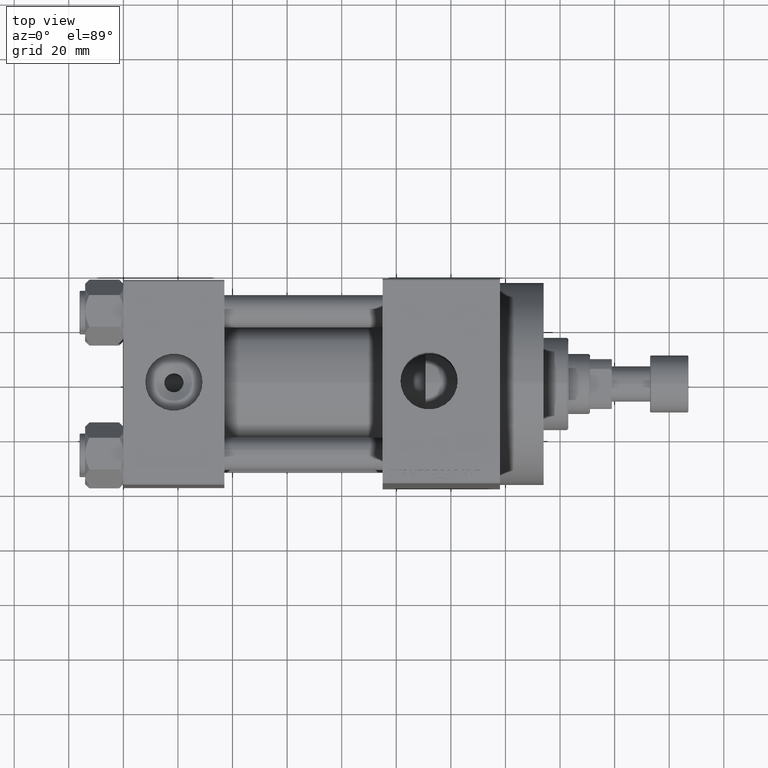
[diagram: clean part render]
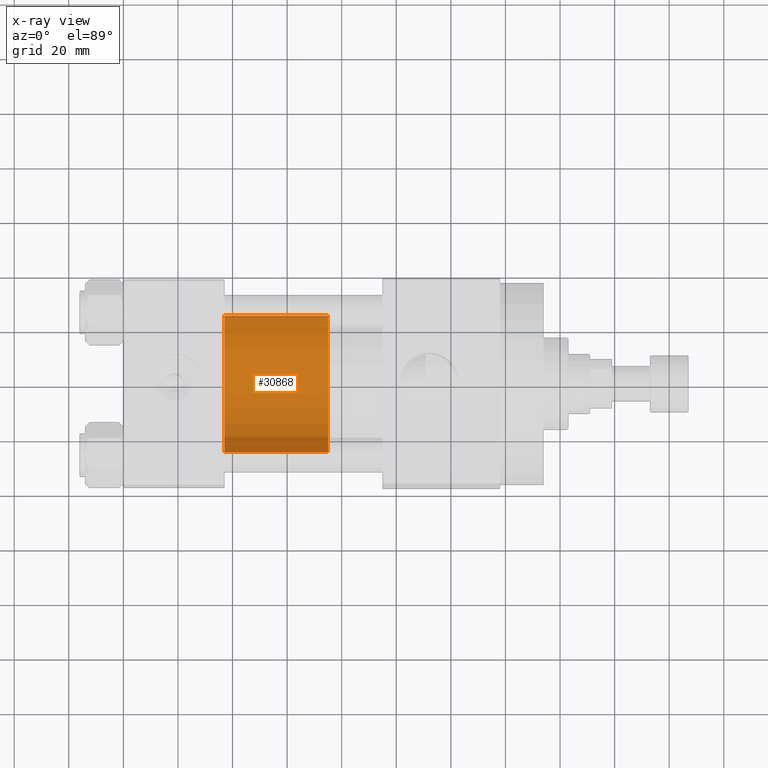
[diagram: x-ray — body ghosted, one internal face saturated and labeled with its STEP entity id]
A machine part, top view, then the same camera in x-ray: the body is ghosted and one INTERNAL B-rep face — a face not visible from any outside direction — is saturated and labeled: STEP entity #30868.
In plain terms, the highlighted cylindrical surface (partial cylindrical patch) has radius 25 mm, axis along (-1, 0, 0).
Its self-contained STEP definition (entity closure, byte-faithful):
#1606 = ORIENTED_EDGE ( 'NONE', *, *, #31120, .F. ) ;
#2234 = AXIS2_PLACEMENT_3D ( 'NONE', #32948, #11435, #18204 ) ;
#3378 = EDGE_CURVE ( 'NONE', #40544, #25558, #19190, .T. ) ;
#4782 = EDGE_LOOP ( 'NONE', ( #1606, #30766, #30052, #21010 ) ) ;
#6311 = CARTESIAN_POINT ( 'NONE',  ( -25.00000000000000000, 0.000000000000000000, 0.000000000000000000 ) ) ;
#8476 = DIRECTION ( 'NONE',  ( -0.000000000000000000, -0.000000000000000000, -1.000000000000000000 ) ) ;
#11435 = DIRECTION ( 'NONE',  ( 0.000000000000000000, 0.000000000000000000, 1.000000000000000000 ) ) ;
#11907 = VECTOR ( 'NONE', #42713, 1000.000000000000000 ) ;
#12106 = FACE_OUTER_BOUND ( 'NONE', #4782, .T. ) ;
#12366 = CARTESIAN_POINT ( 'NONE',  ( 25.00000000000000000, 3.061616997868383043E-15, 38.00000000000000000 ) ) ;
#12808 = VERTEX_POINT ( 'NONE', #37673 ) ;
#15056 = DIRECTION ( 'NONE',  ( -0.000000000000000000, -0.000000000000000000, -1.000000000000000000 ) ) ;
#16133 = CARTESIAN_POINT ( 'NONE',  ( -25.00000000000000000, 0.000000000000000000, 38.00000000000000000 ) ) ;
#17035 = AXIS2_PLACEMENT_3D ( 'NONE', #23209, #8476, #37960 ) ;
#18204 = DIRECTION ( 'NONE',  ( 1.000000000000000000, 0.000000000000000000, 0.000000000000000000 ) ) ;
#19147 = LINE ( 'NONE', #12366, #28138 ) ;
#19190 = CIRCLE ( 'NONE', #2234, 25.00000000000000000 ) ;
#20086 = AXIS2_PLACEMENT_3D ( 'NONE', #21731, #33095, #36245 ) ;
#21010 = ORIENTED_EDGE ( 'NONE', *, *, #44539, .F. ) ;
#21731 = CARTESIAN_POINT ( 'NONE',  ( 0.000000000000000000, 0.000000000000000000, 38.00000000000000000 ) ) ;
#23209 = CARTESIAN_POINT ( 'NONE',  ( 0.000000000000000000, 0.000000000000000000, 38.00000000000000000 ) ) ;
#24091 = LINE ( 'NONE', #16133, #11907 ) ;
#24179 = CARTESIAN_POINT ( 'NONE',  ( 25.00000000000000000, 3.061616997868383043E-15, 0.000000000000000000 ) ) ;
#25558 = VERTEX_POINT ( 'NONE', #6311 ) ;
#26851 = CYLINDRICAL_SURFACE ( 'NONE', #17035, 25.00000000000000000 ) ;
#28138 = VECTOR ( 'NONE', #15056, 1000.000000000000000 ) ;
#30052 = ORIENTED_EDGE ( 'NONE', *, *, #3378, .T. ) ;
#30766 = ORIENTED_EDGE ( 'NONE', *, *, #43783, .T. ) ;
#30868 = ADVANCED_FACE ( 'NONE', ( #12106 ), #26851, .T. ) ;
#31120 = EDGE_CURVE ( 'NONE', #38430, #12808, #43249, .T. ) ;
#32948 = CARTESIAN_POINT ( 'NONE',  ( 0.000000000000000000, 0.000000000000000000, 0.000000000000000000 ) ) ;
#33095 = DIRECTION ( 'NONE',  ( 0.000000000000000000, 0.000000000000000000, 1.000000000000000000 ) ) ;
#34417 = CARTESIAN_POINT ( 'NONE',  ( 25.00000000000000000, 3.061616997868383043E-15, 38.00000000000000000 ) ) ;
#36245 = DIRECTION ( 'NONE',  ( 1.000000000000000000, 0.000000000000000000, 0.000000000000000000 ) ) ;
#37673 = CARTESIAN_POINT ( 'NONE',  ( -25.00000000000000000, 0.000000000000000000, 38.00000000000000000 ) ) ;
#37960 = DIRECTION ( 'NONE',  ( -1.000000000000000000, 0.000000000000000000, 0.000000000000000000 ) ) ;
#38430 = VERTEX_POINT ( 'NONE', #34417 ) ;
#40544 = VERTEX_POINT ( 'NONE', #24179 ) ;
#42713 = DIRECTION ( 'NONE',  ( -0.000000000000000000, -0.000000000000000000, -1.000000000000000000 ) ) ;
#43249 = CIRCLE ( 'NONE', #20086, 25.00000000000000000 ) ;
#43783 = EDGE_CURVE ( 'NONE', #38430, #40544, #19147, .T. ) ;
#44539 = EDGE_CURVE ( 'NONE', #12808, #25558, #24091, .T. ) ;